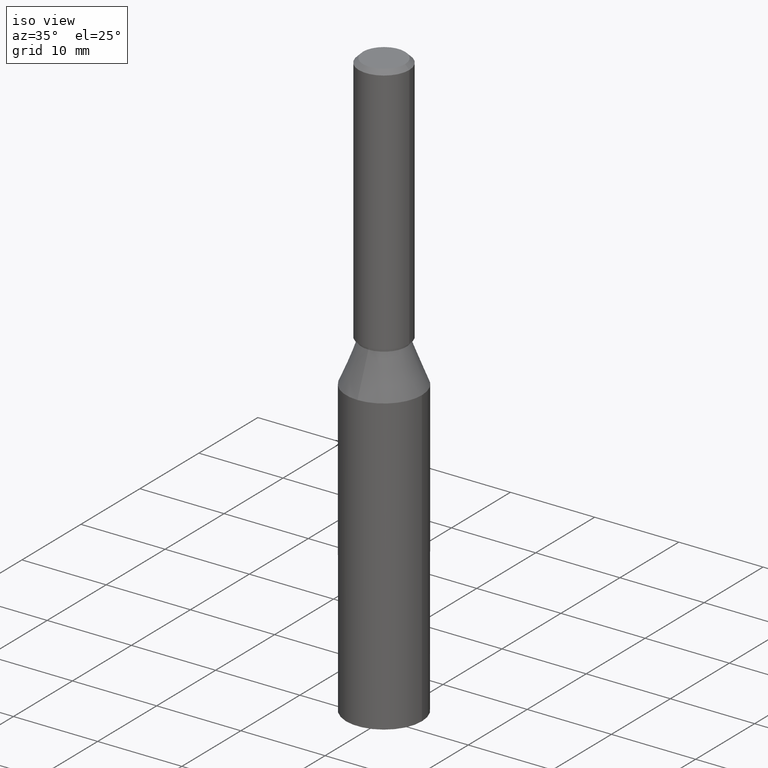
[diagram: clean part render]
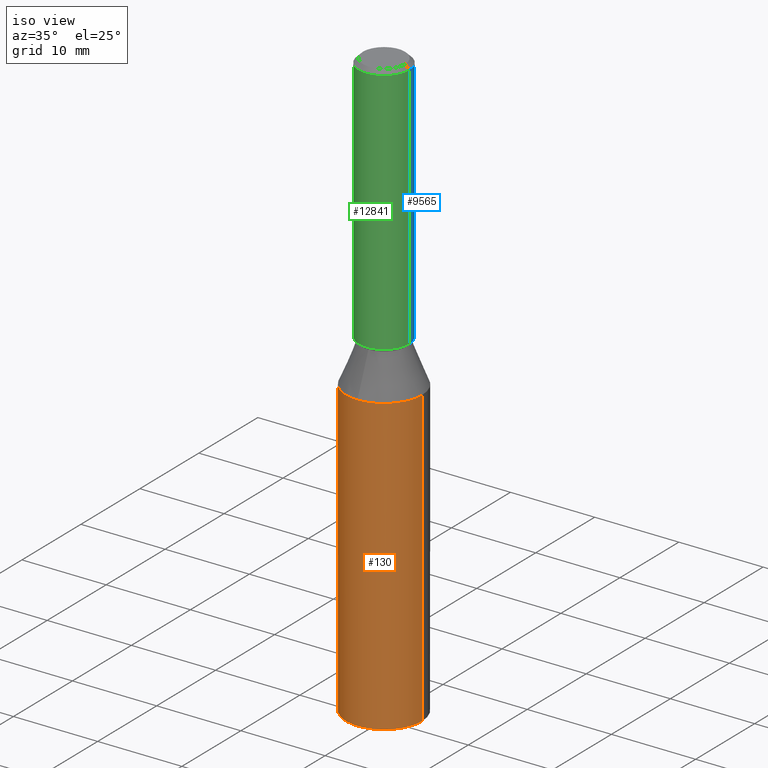
[diagram: same view with three faces highlighted in distinct colors, each labeled with its STEP entity id]
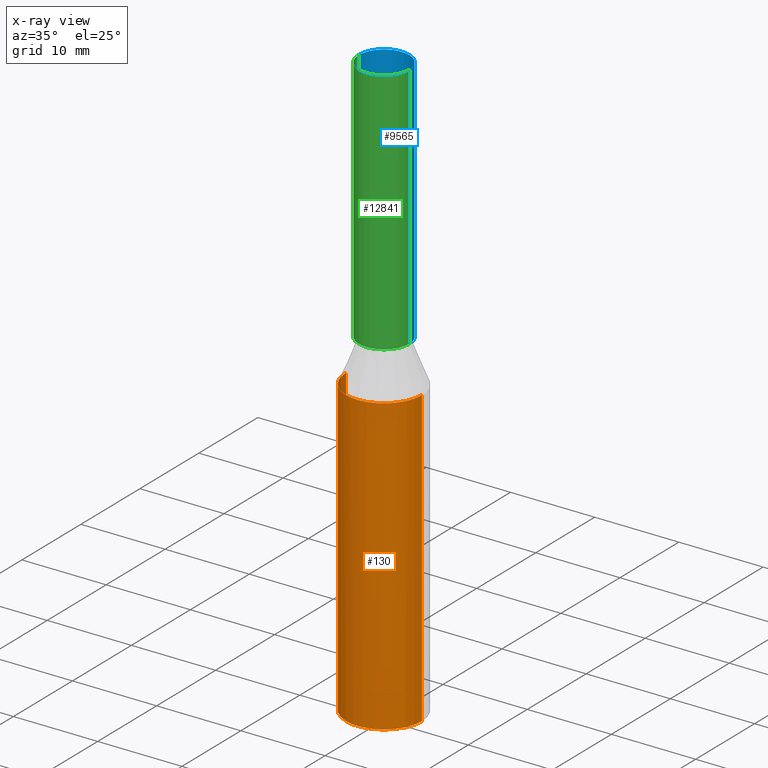
[diagram: x-ray of the same camera — body ghosted, the three highlighted faces saturated]
A machine part, iso view with three faces highlighted in distinct colors.
The next image is the same camera in x-ray (body ghosted, the three faces saturated) — at least one of them is partly hidden behind the body in this view.
Their STEP definitions:

[orange] entity #130 — the highlighted cylindrical surface (partial cylindrical patch) has radius 4.5 mm, axis along (-0, -0, -1).
#130 = ADVANCED_FACE ( 'NONE', ( #970 ), #12674, .T. ) ;
#624 = DIRECTION ( 'NONE',  ( -0.0000000000000000000, 1.967742040464242900E-018, -1.000000000000000000 ) ) ;
#935 = DIRECTION ( 'NONE',  ( -0.0000000000000000000, -0.0000000000000000000, -1.000000000000000000 ) ) ;
#970 = FACE_OUTER_BOUND ( 'NONE', #3520, .T. ) ;
#1245 = EDGE_CURVE ( 'NONE', #5743, #2675, #11182, .T. ) ;
#1318 = DIRECTION ( 'NONE',  ( 0.0000000000000000000, 0.0000000000000000000, 1.000000000000000000 ) ) ;
#1575 = VECTOR ( 'NONE', #8150, 1000.000000000000000 ) ;
#1866 = DIRECTION ( 'NONE',  ( -1.000000000000000000, 0.0000000000000000000, 0.0000000000000000000 ) ) ;
#1916 = CIRCLE ( 'NONE', #5065, 4.500000000000004400 ) ;
#2670 = CARTESIAN_POINT ( 'NONE',  ( -4.500000000000004400, 7.222237291452134400E-032, 35.00000000000000000 ) ) ;
#2675 = VERTEX_POINT ( 'NONE', #2670 ) ;
#2761 = CARTESIAN_POINT ( 'NONE',  ( 4.500000000000000000, 5.510910596163088600E-016, 40.00000000000000000 ) ) ;
#2835 = ORIENTED_EDGE ( 'NONE', *, *, #1245, .T. ) ;
#3335 = VERTEX_POINT ( 'NONE', #3401 ) ;
#3401 = CARTESIAN_POINT ( 'NONE',  ( 4.500000000000000000, 5.510910596163088600E-016, 0.0000000000000000000 ) ) ;
#3520 = EDGE_LOOP ( 'NONE', ( #6923, #13270, #2835, #5392, #10894 ) ) ;
#3615 = CARTESIAN_POINT ( 'NONE',  ( 0.0000000000000000000, -6.887097141624851200E-017, 35.00000000000000000 ) ) ;
#3634 = CARTESIAN_POINT ( 'NONE',  ( 0.0000000000000000000, -6.887097141624851200E-017, 35.00000000000000000 ) ) ;
#4142 = CARTESIAN_POINT ( 'NONE',  ( 0.0000000000000000000, 0.0000000000000000000, 40.00000000000000000 ) ) ;
#4575 = AXIS2_PLACEMENT_3D ( 'NONE', #3634, #12104, #5698 ) ;
#4918 = CARTESIAN_POINT ( 'NONE',  ( -4.500000000000000000, 0.0000000000000000000, 40.00000000000000000 ) ) ;
#5065 = AXIS2_PLACEMENT_3D ( 'NONE', #3615, #624, #8000 ) ;
#5392 = ORIENTED_EDGE ( 'NONE', *, *, #12571, .T. ) ;
#5698 = DIRECTION ( 'NONE',  ( 0.0000000000000000000, 1.000000000000000000, 0.0000000000000000000 ) ) ;
#5702 = LINE ( 'NONE', #4918, #10813 ) ;
#5743 = VERTEX_POINT ( 'NONE', #9718 ) ;
#5880 = CARTESIAN_POINT ( 'NONE',  ( -4.500000000000000000, 0.0000000000000000000, 0.0000000000000000000 ) ) ;
#6923 = ORIENTED_EDGE ( 'NONE', *, *, #12381, .F. ) ;
#7405 = VERTEX_POINT ( 'NONE', #5880 ) ;
#8000 = DIRECTION ( 'NONE',  ( 0.0000000000000000000, 1.000000000000000000, 0.0000000000000000000 ) ) ;
#8150 = DIRECTION ( 'NONE',  ( -0.0000000000000000000, -0.0000000000000000000, -1.000000000000000000 ) ) ;
#8249 = EDGE_CURVE ( 'NONE', #7405, #3335, #11439, .T. ) ;
#8669 = LINE ( 'NONE', #2761, #1575 ) ;
#8692 = CARTESIAN_POINT ( 'NONE',  ( 0.0000000000000000000, 0.0000000000000000000, 0.0000000000000000000 ) ) ;
#9392 = EDGE_CURVE ( 'NONE', #11483, #5743, #1916, .T. ) ;
#9625 = AXIS2_PLACEMENT_3D ( 'NONE', #8692, #1318, #9666 ) ;
#9666 = DIRECTION ( 'NONE',  ( 1.000000000000000000, 0.0000000000000000000, 0.0000000000000000000 ) ) ;
#9718 = CARTESIAN_POINT ( 'NONE',  ( 5.510910596163095500E-016, -4.500000000000004400, 35.00000000000000000 ) ) ;
#10813 = VECTOR ( 'NONE', #11171, 1000.000000000000000 ) ;
#10894 = ORIENTED_EDGE ( 'NONE', *, *, #8249, .T. ) ;
#10908 = CARTESIAN_POINT ( 'NONE',  ( 4.500000000000004400, 5.510910596163095500E-016, 35.00000000000000000 ) ) ;
#11171 = DIRECTION ( 'NONE',  ( -0.0000000000000000000, -0.0000000000000000000, -1.000000000000000000 ) ) ;
#11182 = CIRCLE ( 'NONE', #4575, 4.500000000000004400 ) ;
#11439 = CIRCLE ( 'NONE', #9625, 4.500000000000000000 ) ;
#11454 = AXIS2_PLACEMENT_3D ( 'NONE', #4142, #935, #1866 ) ;
#11483 = VERTEX_POINT ( 'NONE', #10908 ) ;
#12104 = DIRECTION ( 'NONE',  ( -0.0000000000000000000, 1.967742040464242900E-018, -1.000000000000000000 ) ) ;
#12381 = EDGE_CURVE ( 'NONE', #11483, #3335, #8669, .T. ) ;
#12571 = EDGE_CURVE ( 'NONE', #2675, #7405, #5702, .T. ) ;
#12674 = CYLINDRICAL_SURFACE ( 'NONE', #11454, 4.500000000000000000 ) ;
#13270 = ORIENTED_EDGE ( 'NONE', *, *, #9392, .T. ) ;

[blue] entity #9565 — the highlighted cylindrical surface (edge-blend (fillet) strip) has radius 3 mm, axis along (-0, -0, -1).
#120 = EDGE_CURVE ( 'NONE', #1542, #6051, #3126, .T. ) ;
#366 = AXIS2_PLACEMENT_3D ( 'NONE', #2931, #797, #8091 ) ;
#797 = DIRECTION ( 'NONE',  ( -0.0000000000000000000, -0.0000000000000000000, -1.000000000000000000 ) ) ;
#984 = CARTESIAN_POINT ( 'NONE',  ( 3.000000000000000400, 3.673940397442060400E-016, 70.00000000000000000 ) ) ;
#1384 = CARTESIAN_POINT ( 'NONE',  ( 0.0000000000000000000, 0.0000000000000000000, 40.10000000000000900 ) ) ;
#1457 = VECTOR ( 'NONE', #3950, 1000.000000000000000 ) ;
#1542 = VERTEX_POINT ( 'NONE', #4638 ) ;
#1680 = DIRECTION ( 'NONE',  ( 1.000000000000000000, 0.0000000000000000000, 0.0000000000000000000 ) ) ;
#1962 = CARTESIAN_POINT ( 'NONE',  ( -3.000000000000000400, 0.0000000000000000000, 40.10000000000000900 ) ) ;
#2370 = CIRCLE ( 'NONE', #11220, 3.000000000000000400 ) ;
#2565 = CIRCLE ( 'NONE', #3911, 3.000000000000000400 ) ;
#2931 = CARTESIAN_POINT ( 'NONE',  ( 0.0000000000000000000, 0.0000000000000000000, 70.00000000000000000 ) ) ;
#3126 = LINE ( 'NONE', #11084, #1457 ) ;
#3457 = VERTEX_POINT ( 'NONE', #13313 ) ;
#3486 = LINE ( 'NONE', #984, #9757 ) ;
#3911 = AXIS2_PLACEMENT_3D ( 'NONE', #1384, #11894, #6784 ) ;
#3950 = DIRECTION ( 'NONE',  ( -0.0000000000000000000, -0.0000000000000000000, -1.000000000000000000 ) ) ;
#4075 = FACE_OUTER_BOUND ( 'NONE', #9547, .T. ) ;
#4091 = CARTESIAN_POINT ( 'NONE',  ( 3.000000000000000400, 3.673940397442060400E-016, 40.10000000000000900 ) ) ;
#4221 = CYLINDRICAL_SURFACE ( 'NONE', #366, 3.000000000000000400 ) ;
#4638 = CARTESIAN_POINT ( 'NONE',  ( -3.000000000000000400, 0.0000000000000000000, 69.49999999999998600 ) ) ;
#4737 = EDGE_CURVE ( 'NONE', #3457, #8752, #3486, .T. ) ;
#5188 = ORIENTED_EDGE ( 'NONE', *, *, #8167, .T. ) ;
#6051 = VERTEX_POINT ( 'NONE', #1962 ) ;
#6241 = DIRECTION ( 'NONE',  ( -0.0000000000000000000, -0.0000000000000000000, -1.000000000000000000 ) ) ;
#6247 = ORIENTED_EDGE ( 'NONE', *, *, #4737, .T. ) ;
#6784 = DIRECTION ( 'NONE',  ( 0.0000000000000000000, 1.000000000000000000, 0.0000000000000000000 ) ) ;
#6988 = CARTESIAN_POINT ( 'NONE',  ( 0.0000000000000000000, 0.0000000000000000000, 69.49999999999998600 ) ) ;
#7118 = ORIENTED_EDGE ( 'NONE', *, *, #13080, .F. ) ;
#7733 = ORIENTED_EDGE ( 'NONE', *, *, #120, .F. ) ;
#8091 = DIRECTION ( 'NONE',  ( -1.000000000000000000, 0.0000000000000000000, 0.0000000000000000000 ) ) ;
#8167 = EDGE_CURVE ( 'NONE', #1542, #3457, #2370, .T. ) ;
#8752 = VERTEX_POINT ( 'NONE', #4091 ) ;
#9547 = EDGE_LOOP ( 'NONE', ( #5188, #6247, #7118, #7733 ) ) ;
#9565 = ADVANCED_FACE ( 'NONE', ( #4075 ), #4221, .T. ) ;
#9757 = VECTOR ( 'NONE', #6241, 1000.000000000000000 ) ;
#10165 = DIRECTION ( 'NONE',  ( 0.0000000000000000000, 0.0000000000000000000, -1.000000000000000000 ) ) ;
#11084 = CARTESIAN_POINT ( 'NONE',  ( -3.000000000000000400, 0.0000000000000000000, 70.00000000000000000 ) ) ;
#11220 = AXIS2_PLACEMENT_3D ( 'NONE', #6988, #10165, #1680 ) ;
#11894 = DIRECTION ( 'NONE',  ( -0.0000000000000000000, 1.967742040464242900E-018, -1.000000000000000000 ) ) ;
#13080 = EDGE_CURVE ( 'NONE', #6051, #8752, #2565, .T. ) ;
#13313 = CARTESIAN_POINT ( 'NONE',  ( 3.000000000000000400, 3.673940397442060400E-016, 69.49999999999998600 ) ) ;

[green] entity #12841 — the highlighted cylindrical surface (edge-blend (fillet) strip) has radius 3 mm, axis along (-0, -0, -1).
#120 = EDGE_CURVE ( 'NONE', #1542, #6051, #3126, .T. ) ;
#984 = CARTESIAN_POINT ( 'NONE',  ( 3.000000000000000400, 3.673940397442060400E-016, 70.00000000000000000 ) ) ;
#1457 = VECTOR ( 'NONE', #3950, 1000.000000000000000 ) ;
#1542 = VERTEX_POINT ( 'NONE', #4638 ) ;
#1878 = CIRCLE ( 'NONE', #11488, 3.000000000000000400 ) ;
#1962 = CARTESIAN_POINT ( 'NONE',  ( -3.000000000000000400, 0.0000000000000000000, 40.10000000000000900 ) ) ;
#2229 = CYLINDRICAL_SURFACE ( 'NONE', #7424, 3.000000000000000400 ) ;
#2330 = CARTESIAN_POINT ( 'NONE',  ( 0.0000000000000000000, 0.0000000000000000000, 40.10000000000000900 ) ) ;
#3029 = DIRECTION ( 'NONE',  ( -1.000000000000000000, 0.0000000000000000000, 0.0000000000000000000 ) ) ;
#3099 = CARTESIAN_POINT ( 'NONE',  ( 0.0000000000000000000, 0.0000000000000000000, 69.49999999999998600 ) ) ;
#3126 = LINE ( 'NONE', #11084, #1457 ) ;
#3255 = DIRECTION ( 'NONE',  ( 0.0000000000000000000, 1.000000000000000000, 0.0000000000000000000 ) ) ;
#3457 = VERTEX_POINT ( 'NONE', #13313 ) ;
#3486 = LINE ( 'NONE', #984, #9757 ) ;
#3644 = ORIENTED_EDGE ( 'NONE', *, *, #6766, .T. ) ;
#3950 = DIRECTION ( 'NONE',  ( -0.0000000000000000000, -0.0000000000000000000, -1.000000000000000000 ) ) ;
#4091 = CARTESIAN_POINT ( 'NONE',  ( 3.000000000000000400, 3.673940397442060400E-016, 40.10000000000000900 ) ) ;
#4318 = DIRECTION ( 'NONE',  ( -0.0000000000000000000, 1.967742040464242900E-018, -1.000000000000000000 ) ) ;
#4359 = ORIENTED_EDGE ( 'NONE', *, *, #7612, .F. ) ;
#4513 = AXIS2_PLACEMENT_3D ( 'NONE', #3099, #6222, #11520 ) ;
#4638 = CARTESIAN_POINT ( 'NONE',  ( -3.000000000000000400, 0.0000000000000000000, 69.49999999999998600 ) ) ;
#4737 = EDGE_CURVE ( 'NONE', #3457, #8752, #3486, .T. ) ;
#6051 = VERTEX_POINT ( 'NONE', #1962 ) ;
#6052 = FACE_OUTER_BOUND ( 'NONE', #11449, .T. ) ;
#6189 = ORIENTED_EDGE ( 'NONE', *, *, #120, .T. ) ;
#6222 = DIRECTION ( 'NONE',  ( 0.0000000000000000000, 0.0000000000000000000, -1.000000000000000000 ) ) ;
#6241 = DIRECTION ( 'NONE',  ( -0.0000000000000000000, -0.0000000000000000000, -1.000000000000000000 ) ) ;
#6766 = EDGE_CURVE ( 'NONE', #3457, #1542, #10004, .T. ) ;
#7263 = CARTESIAN_POINT ( 'NONE',  ( 0.0000000000000000000, 0.0000000000000000000, 70.00000000000000000 ) ) ;
#7424 = AXIS2_PLACEMENT_3D ( 'NONE', #7263, #8405, #3029 ) ;
#7612 = EDGE_CURVE ( 'NONE', #8752, #6051, #1878, .T. ) ;
#8405 = DIRECTION ( 'NONE',  ( -0.0000000000000000000, -0.0000000000000000000, -1.000000000000000000 ) ) ;
#8752 = VERTEX_POINT ( 'NONE', #4091 ) ;
#9757 = VECTOR ( 'NONE', #6241, 1000.000000000000000 ) ;
#10004 = CIRCLE ( 'NONE', #4513, 3.000000000000000400 ) ;
#11084 = CARTESIAN_POINT ( 'NONE',  ( -3.000000000000000400, 0.0000000000000000000, 70.00000000000000000 ) ) ;
#11449 = EDGE_LOOP ( 'NONE', ( #12294, #3644, #6189, #4359 ) ) ;
#11488 = AXIS2_PLACEMENT_3D ( 'NONE', #2330, #4318, #3255 ) ;
#11520 = DIRECTION ( 'NONE',  ( 1.000000000000000000, 0.0000000000000000000, 0.0000000000000000000 ) ) ;
#12294 = ORIENTED_EDGE ( 'NONE', *, *, #4737, .F. ) ;
#12841 = ADVANCED_FACE ( 'NONE', ( #6052 ), #2229, .T. ) ;
#13313 = CARTESIAN_POINT ( 'NONE',  ( 3.000000000000000400, 3.673940397442060400E-016, 69.49999999999998600 ) ) ;